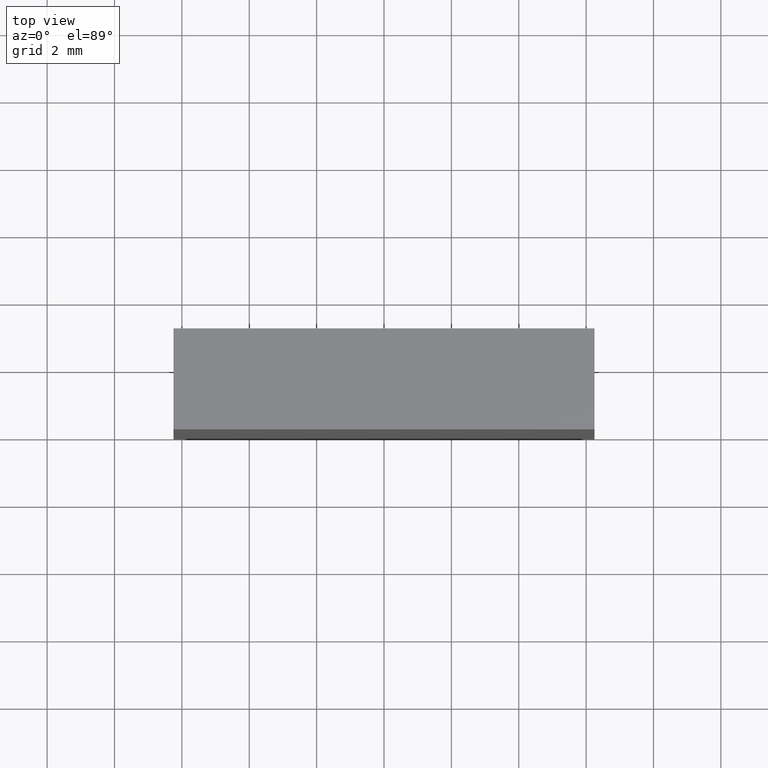
[diagram: clean part render]
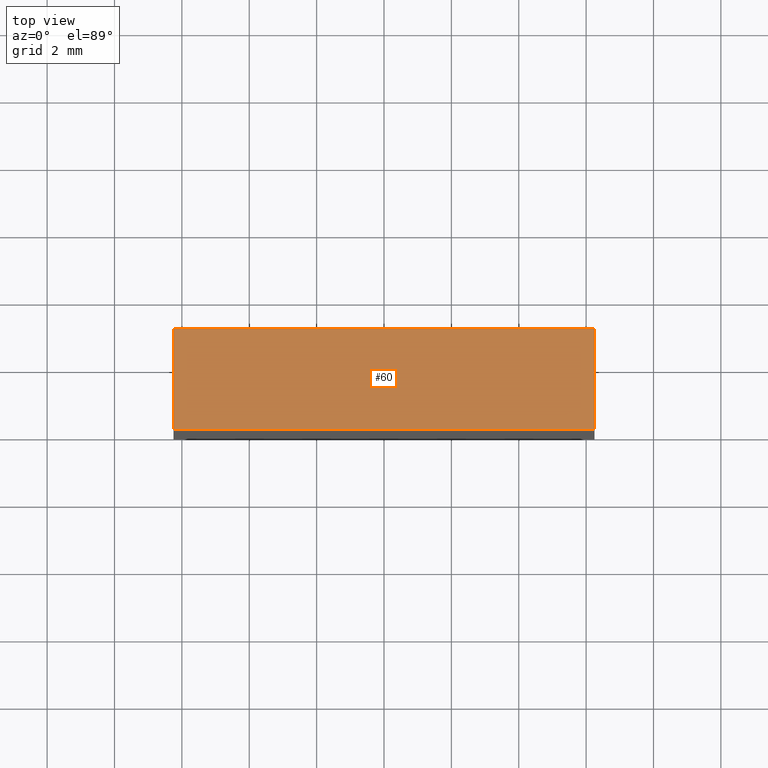
[diagram: same view with one face highlighted and labeled with its STEP entity id]
A machine part, top view. The second image highlights one B-rep face of the part: STEP entity #60.
In plain terms, the highlighted planar face has unit normal (0, 0, -1).
Its self-contained STEP definition (entity closure, byte-faithful):
#8 = DIRECTION ( 'NONE',  ( 1.000000000000000000, 0.0000000000000000000, 0.0000000000000000000 ) ) ;
#11 = FACE_OUTER_BOUND ( 'NONE', #13, .T. ) ;
#13 = EDGE_LOOP ( 'NONE', ( #78, #58, #183, #171 ) ) ;
#20 = DIRECTION ( 'NONE',  ( -1.000000000000000000, 0.0000000000000000000, -0.0000000000000000000 ) ) ;
#32 = VECTOR ( 'NONE', #125, 1000.000000000000000 ) ;
#38 = AXIS2_PLACEMENT_3D ( 'NONE', #157, #105, #20 ) ;
#43 = CARTESIAN_POINT ( 'NONE',  ( -6.250000000000000000, 3.000000000000000000, 8.750000000000000000 ) ) ;
#51 = VERTEX_POINT ( 'NONE', #128 ) ;
#58 = ORIENTED_EDGE ( 'NONE', *, *, #169, .F. ) ;
#60 = ADVANCED_FACE ( 'NONE', ( #11 ), #145, .F. ) ;
#62 = LINE ( 'NONE', #43, #149 ) ;
#67 = LINE ( 'NONE', #108, #168 ) ;
#74 = CARTESIAN_POINT ( 'NONE',  ( -6.250000000000000000, 0.0000000000000000000, 8.750000000000000000 ) ) ;
#76 = VECTOR ( 'NONE', #8, 1000.000000000000000 ) ;
#77 = EDGE_CURVE ( 'NONE', #86, #51, #62, .T. ) ;
#78 = ORIENTED_EDGE ( 'NONE', *, *, #87, .T. ) ;
#84 = DIRECTION ( 'NONE',  ( 1.000000000000000000, 0.0000000000000000000, 0.0000000000000000000 ) ) ;
#86 = VERTEX_POINT ( 'NONE', #138 ) ;
#87 = EDGE_CURVE ( 'NONE', #112, #199, #165, .T. ) ;
#105 = DIRECTION ( 'NONE',  ( 0.0000000000000000000, 0.0000000000000000000, -1.000000000000000000 ) ) ;
#108 = CARTESIAN_POINT ( 'NONE',  ( -6.250000000000000000, 3.000000000000000000, 8.750000000000000000 ) ) ;
#112 = VERTEX_POINT ( 'NONE', #113 ) ;
#113 = CARTESIAN_POINT ( 'NONE',  ( -6.250000000000000000, 0.0000000000000000000, 8.750000000000000000 ) ) ;
#125 = DIRECTION ( 'NONE',  ( -0.0000000000000000000, -1.000000000000000000, -0.0000000000000000000 ) ) ;
#128 = CARTESIAN_POINT ( 'NONE',  ( 6.250000000000000000, 3.000000000000000000, 8.750000000000000000 ) ) ;
#138 = CARTESIAN_POINT ( 'NONE',  ( -6.250000000000000000, 3.000000000000000000, 8.750000000000000000 ) ) ;
#145 = PLANE ( 'NONE',  #38 ) ;
#149 = VECTOR ( 'NONE', #84, 1000.000000000000000 ) ;
#157 = CARTESIAN_POINT ( 'NONE',  ( -6.250000000000000000, 3.000000000000000000, 8.750000000000000000 ) ) ;
#165 = LINE ( 'NONE', #74, #76 ) ;
#168 = VECTOR ( 'NONE', #192, 1000.000000000000000 ) ;
#169 = EDGE_CURVE ( 'NONE', #51, #199, #202, .T. ) ;
#171 = ORIENTED_EDGE ( 'NONE', *, *, #191, .T. ) ;
#179 = CARTESIAN_POINT ( 'NONE',  ( 6.250000000000000000, 3.000000000000000000, 8.750000000000000000 ) ) ;
#183 = ORIENTED_EDGE ( 'NONE', *, *, #77, .F. ) ;
#191 = EDGE_CURVE ( 'NONE', #86, #112, #67, .T. ) ;
#192 = DIRECTION ( 'NONE',  ( -0.0000000000000000000, -1.000000000000000000, -0.0000000000000000000 ) ) ;
#196 = CARTESIAN_POINT ( 'NONE',  ( 6.250000000000000000, 0.0000000000000000000, 8.750000000000000000 ) ) ;
#199 = VERTEX_POINT ( 'NONE', #196 ) ;
#202 = LINE ( 'NONE', #179, #32 ) ;